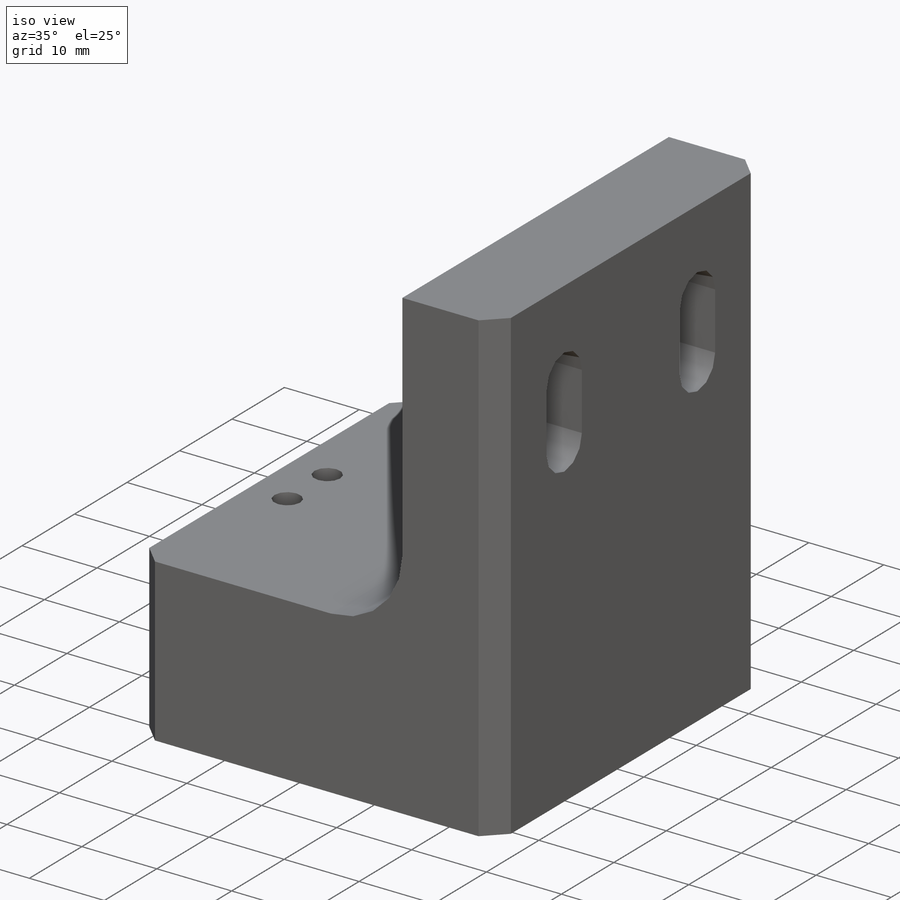
[diagram: iso view]
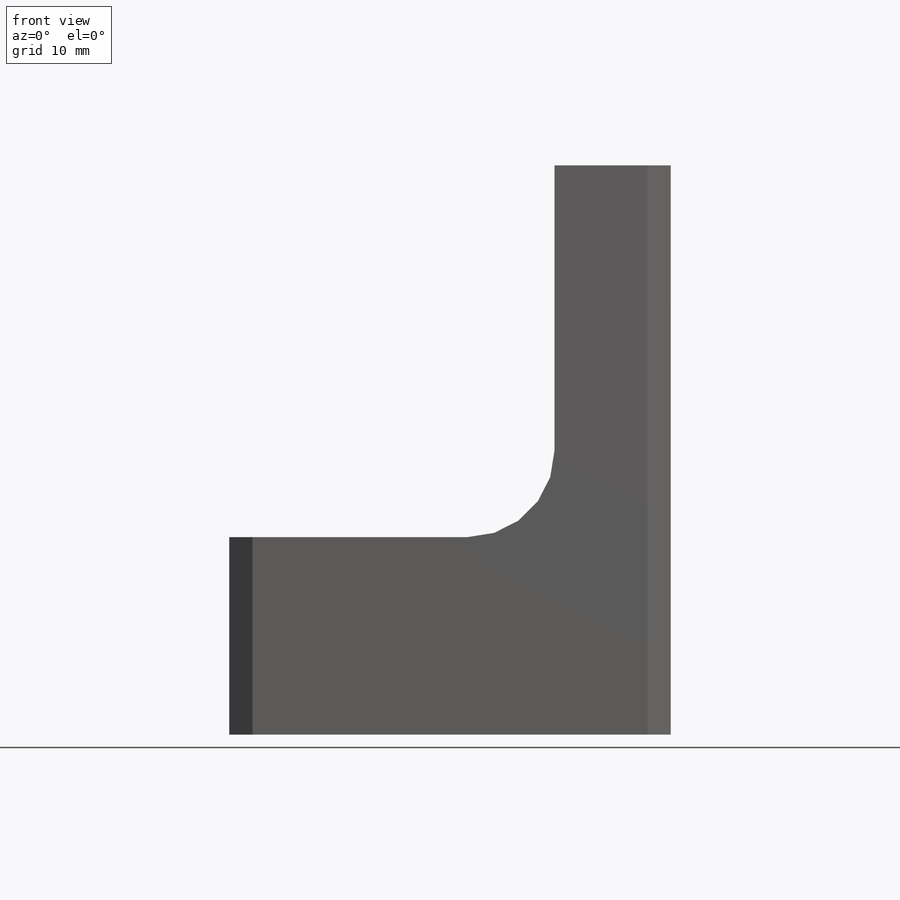
[diagram: front view]
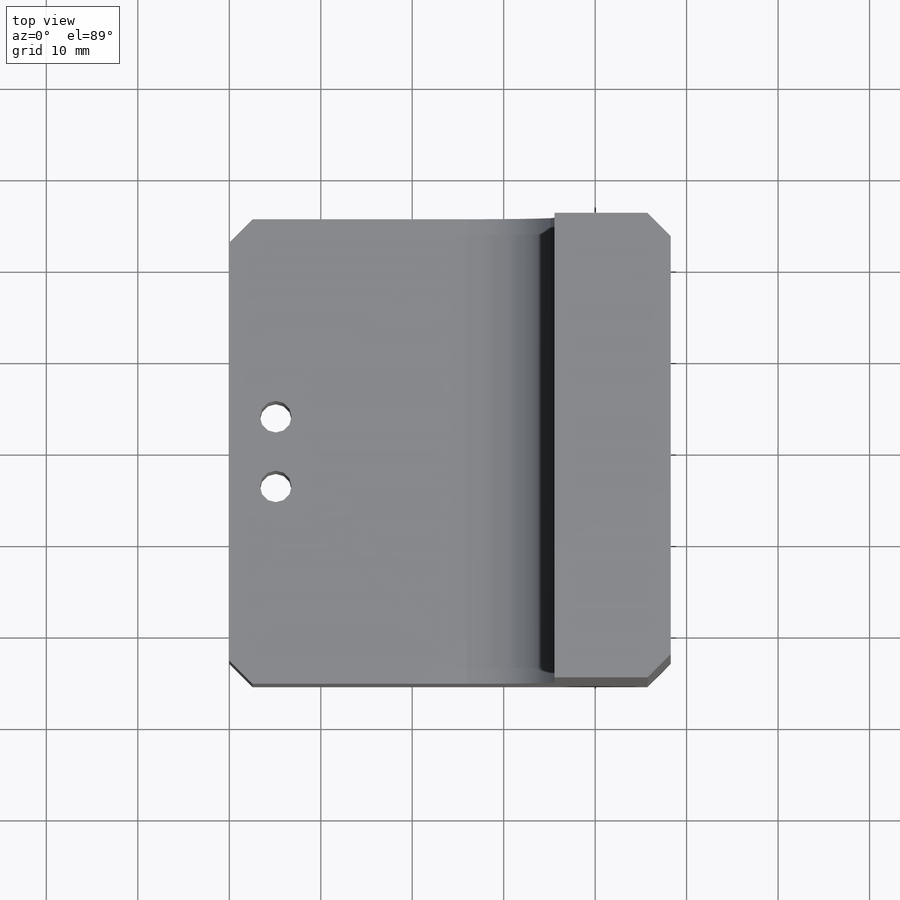
[diagram: top view]
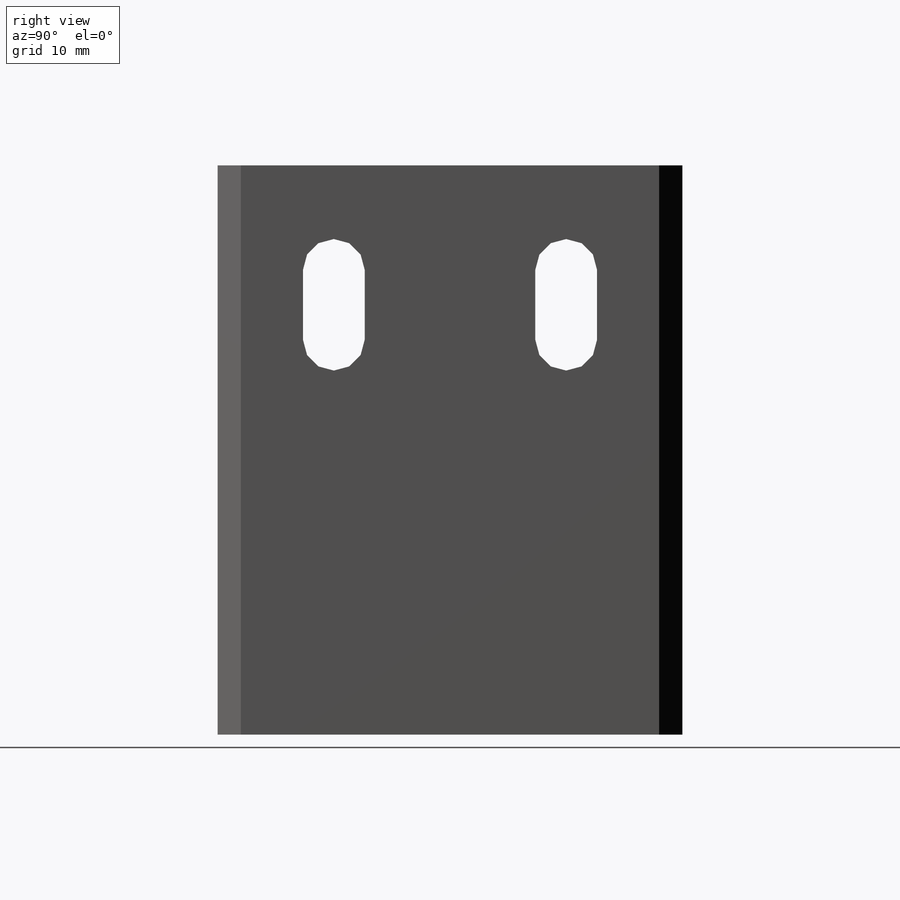
[diagram: right view]
SOLIDWORKS PART (.sldprt)
format: sldprt  version: not decoded by parser v0  size: 244,224 bytes
history: native  units: mm
features: sketch x4, material x1, extrude x1, hole x1, cut_extrude x1, pattern_linear x1, fillet x1, chamfer x1 (+15 scaffold rows collapsed)
feature tree (26):
  scaffold x15  (default folders/planes/origin — collapsed)
  material  "6061 Alloy"
  sketch  "Sketch1"  dims[D1=62.23mm D2=48.26mm D3=35.56mm D4=10.16mm D5=11.43mm D6=21.59mm D7=30.48mm D8=10.16mm]
  extrude  "Extrude1"  Depth=25.4mm
  hole  "#4 Clearance Hole1"  Diameter=3.4544mm Depth=21.59mm
  sketch  "Sketch3"  dims[D1=5.08mm D2=7.62mm D3=3.81mm]
  sketch  "Sketch2"  dims[hole-wizard template sketch: 60 standard entries collapsed; hole parameters kept: c18.Thru Hole Depth=21.59mm]
  sketch  "Sketch4"  dims[c1.D2=3.3782mm c1.D3=3.3782mm c1.D4=3.3782mm c2.D2=3.3782mm c2.D1=6.7564mm c3.D2=43.18mm c3.D3=7.62mm c4.D2=43.18mm c4.D4=12.7mm]
  cut_extrude  "Extrude2"  [1 undecoded]
  pattern_linear  "LPattern1"  Count1=2 Count2=1 Spacing1=25.4mm Spacing2=2.54mm
  fillet  "Fillet2"  Radius=9.525mm
  chamfer  "Chamfer1"  Distance=2.54mm Angle=45deg
decode coverage: 9 of 10 modeling features carry decoded parameters
note: ~ marks probable driven/reference dimensions
note: 1 parameter value undecoded
note: suppression state not decoded; provenance and decode notes live in map.json
